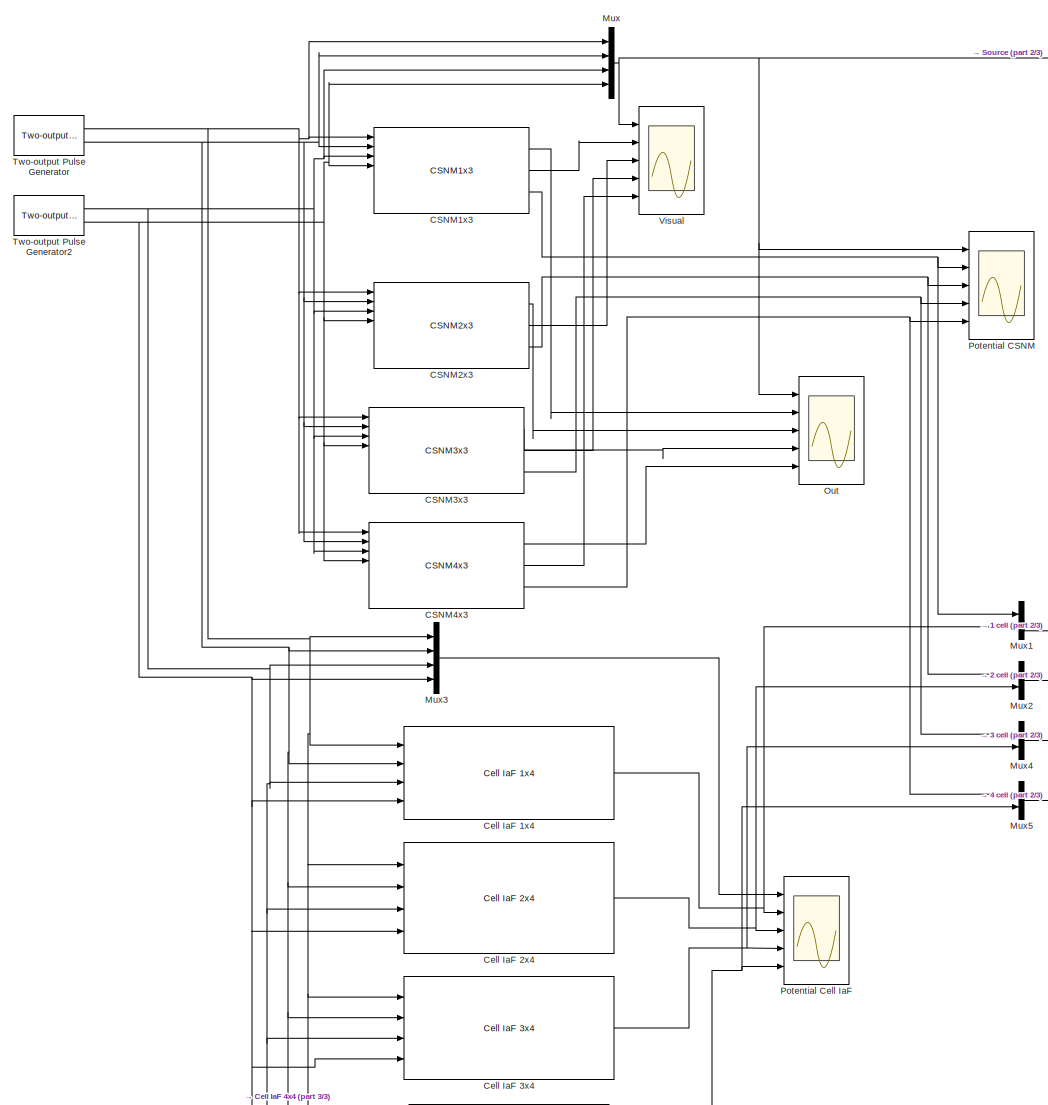
[diagram: root canvas - part 1/3, most of the canvas]
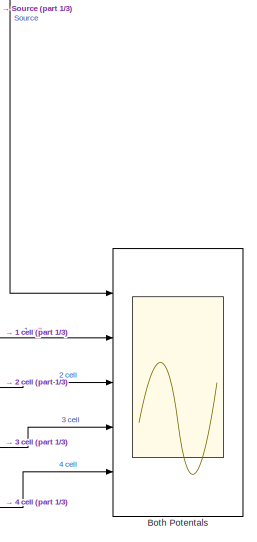
[diagram: root canvas - part 2/3, middle right region]
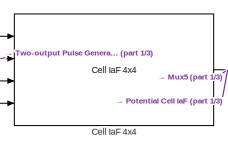
[diagram: root canvas - part 3/3, bottom center region]
MODEL slx_8ba29e321d9b
KIND model
CONFIG AbsTol = auto
CONFIG EnableMultiTasking = off
CONFIG FixedStep = auto
CONFIG MaxStep = auto
CONFIG MinStep = auto
CONFIG RelTol = 1e-3
CONFIG SampleTimeConstraint = Unconstrained
CONFIG SolverName = VariableStepAuto
CONFIG StartTime = 0.0
CONFIG StopTime = 2.0
BLOCK [Scope] Both Potentals
  Floating = off
  NumInputPorts = 5
  Ports = [5]
  ScopeSpecificationString = Simulink.scopes.TimeScopeBlockCfg('CurrentConfiguration', extmgr.ConfigurationSet(extmgr.Configuration('Core','General UI',true,'FigureColor',[1 1 1]),extmgr.Configuration('Core','Source UI',true),extmgr.Configuration('Sources','WiredSimulink',true,'DataLoggingSaveFormat','StructureWithTime','DataLoggingMaxPoints','5000000','DataLoggingLimitDataPoints',true,'DataLoggingDecimation','1','DataLogging...<+5822ch>
BLOCK [Reference] CSNM1x3  REF=NeuroModelerLibrary/Sized Cells/CSNM1x3
  NameLocation = top
  Ports = [8, 3]
  SourceBlock = NeuroModelerLibrary/Sized Cells/CSNM1x3
  SourceType = SubSystem
BLOCK [Reference] CSNM2x3  REF=NeuroModelerLibrary/Sized Cells/CSNM2x3
  NameLocation = top
  Ports = [8, 3]
  SourceBlock = NeuroModelerLibrary/Sized Cells/CSNM2x3
  SourceType = SubSystem
BLOCK [Reference] CSNM3x3  REF=NeuroModelerLibrary/Sized Cells/CSNM3x3
  NameLocation = top
  Ports = [8, 3]
  SourceBlock = NeuroModelerLibrary/Sized Cells/CSNM3x3
  SourceType = SubSystem
BLOCK [Reference] CSNM4x3  REF=NeuroModelerLibrary/Sized Cells/CSNM4x3
  NameLocation = top
  Ports = [8, 3]
  SourceBlock = NeuroModelerLibrary/Sized Cells/CSNM4x3
  SourceType = SubSystem
BLOCK [Reference] Cell IaF 1x4  REF=NeuroModelerLibrary/Sized Cells/Cell IaF 1x4
  Ports = [4, 1]
  SourceBlock = NeuroModelerLibrary/Sized Cells/Cell IaF 1x4
BLOCK [Reference] Cell IaF 2x4  REF=NeuroModelerLibrary/Sized Cells/Cell IaF 2x4
  Ports = [4, 1]
  SourceBlock = NeuroModelerLibrary/Sized Cells/Cell IaF 2x4
BLOCK [Reference] Cell IaF 3x4  REF=NeuroModelerLibrary/Sized Cells/Cell IaF 3x4
  Ports = [4, 1]
  SourceBlock = NeuroModelerLibrary/Sized Cells/Cell IaF 3x4
BLOCK [Reference] Cell IaF 4x4  REF=NeuroModelerLibrary/Sized Cells/Cell IaF 4x4
  Ports = [4, 1]
  SourceBlock = NeuroModelerLibrary/Sized Cells/Cell IaF 4x4
BLOCK [Mux] Mux
  DisplayOption = bar
  Ports = [4, 1]
BLOCK [Mux] Mux1
  DisplayOption = bar
  Inputs = 2
  Ports = [2, 1]
BLOCK [Mux] Mux2
  DisplayOption = bar
  Inputs = 2
  Ports = [2, 1]
BLOCK [Mux] Mux3
  DisplayOption = bar
  Ports = [4, 1]
BLOCK [Mux] Mux4
  DisplayOption = bar
  Inputs = 2
  Ports = [2, 1]
BLOCK [Mux] Mux5
  DisplayOption = bar
  Inputs = 2
  Ports = [2, 1]
BLOCK [Scope] Out
  Floating = off
  NumInputPorts = 5
  Ports = [5]
  ScopeSpecificationString = Simulink.scopes.TimeScopeBlockCfg('CurrentConfiguration', extmgr.ConfigurationSet(extmgr.Configuration('Core','General UI',true,'FigureColor',[1 1 1]),extmgr.Configuration('Core','Source UI',true),extmgr.Configuration('Sources','WiredSimulink',true,'DataLoggingSaveFormat','StructureWithTime','DataLoggingMaxPoints','5000000','DataLoggingLimitDataPoints',true,'DataLoggingDecimation','1','DataLogging...<+5240ch>
BLOCK [Scope] Potential CSNM
  Floating = off
  NumInputPorts = 5
  Ports = [5]
  ScopeSpecificationString = Simulink.scopes.TimeScopeBlockCfg('CurrentConfiguration', extmgr.ConfigurationSet(extmgr.Configuration('Core','General UI',true,'FigureColor',[1 1 1]),extmgr.Configuration('Core','Source UI',true),extmgr.Configuration('Sources','WiredSimulink',true,'DataLoggingSaveFormat','StructureWithTime','DataLoggingMaxPoints','5000000','DataLoggingLimitDataPoints',true,'DataLoggingDecimation','1','DataLogging...<+5250ch>
BLOCK [Scope] Potential Cell IaF
  Floating = off
  NumInputPorts = 5
  Ports = [5]
  ScopeSpecificationString = Simulink.scopes.TimeScopeBlockCfg('CurrentConfiguration', extmgr.ConfigurationSet(extmgr.Configuration('Core','General UI',true,'FigureColor',[1 1 1]),extmgr.Configuration('Core','Source UI',true),extmgr.Configuration('Sources','WiredSimulink',true,'DataLoggingSaveFormat','StructureWithTime','DataLoggingMaxPoints','5000000','DataLoggingLimitDataPoints',true,'DataLoggingDecimation','1','DataLogging...<+5267ch>
BLOCK [Reference] Two-output Pulse Generator  REF=NeuroModelerLibrary/Support/Two-output
Pulse Generator
  Ports = [0, 2]
  SourceBlock = NeuroModelerLibrary/Support/Two-output\nPulse Generator
BLOCK [Reference] Two-output Pulse Generator2  REF=NeuroModelerLibrary/Support/Two-output
Pulse Generator
  Ports = [0, 2]
  SourceBlock = NeuroModelerLibrary/Support/Two-output\nPulse Generator
BLOCK [Scope] Visual
  Floating = off
  NumInputPorts = 5
  Ports = [5]
  ScopeSpecificationString = Simulink.scopes.TimeScopeBlockCfg('CurrentConfiguration', extmgr.ConfigurationSet(extmgr.Configuration('Core','General UI',true,'FigureColor',[1 1 1]),extmgr.Configuration('Core','Source UI',true),extmgr.Configuration('Sources','WiredSimulink',true,'DataLoggingSaveFormat','StructureWithTime','DataLoggingMaxPoints','5000000','DataLoggingLimitDataPoints',true,'DataLoggingDecimation','1','DataLogging...<+5193ch>
LINE CSNM1x3:1 -> Out:2
LINE CSNM1x3:2 -> Visual:2
NET CSNM1x3:3 -> Mux1:1, Potential CSNM:2
LINE CSNM2x3:1 -> Out:3
LINE CSNM2x3:2 -> Visual:3
NET CSNM2x3:3 -> Mux2:1, Potential CSNM:3
LINE CSNM3x3:1 -> Out:4
LINE CSNM3x3:2 -> Visual:4
NET CSNM3x3:3 -> Mux4:1, Potential CSNM:4
LINE CSNM4x3:1 -> Out:5
LINE CSNM4x3:2 -> Visual:5
NET CSNM4x3:3 -> Mux5:1, Potential CSNM:5
NET Cell IaF 1x4:1 -> Mux1:2, Potential Cell IaF:2
NET Cell IaF 2x4:1 -> Mux2:2, Potential Cell IaF:3
NET Cell IaF 3x4:1 -> Mux4:2, Potential Cell IaF:4
NET Cell IaF 4x4:1 -> Mux5:2, Potential Cell IaF:5
LINE Mux1:1 -> Both Potentals:2
LINE Mux2:1 -> Both Potentals:3
LINE Mux3:1 -> Potential Cell IaF:1
LINE Mux4:1 -> Both Potentals:4
LINE Mux5:1 -> Both Potentals:5
NET Mux:1 -> Both Potentals:1, Out:1, Potential CSNM:1, Visual:1
NET Two-output Pulse Generator2:1 -> CSNM1x3:3, CSNM2x3:3, CSNM3x3:3, CSNM4x3:3, Cell IaF 1x4:3, Cell IaF 2x4:3, Cell IaF 3x4:3, Cell IaF 4x4:3, Mux3:3, Mux:3
NET Two-output Pulse Generator2:2 -> CSNM1x3:4, CSNM2x3:4, CSNM3x3:4, CSNM4x3:4, Cell IaF 1x4:4, Cell IaF 2x4:4, Cell IaF 3x4:4, Cell IaF 4x4:4, Mux3:4, Mux:4
NET Two-output Pulse Generator:1 -> CSNM1x3:1, CSNM2x3:1, CSNM3x3:1, CSNM4x3:1, Cell IaF 1x4:1, Cell IaF 2x4:1, Cell IaF 3x4:1, Cell IaF 4x4:1, Mux3:1, Mux:1
NET Two-output Pulse Generator:2 -> CSNM1x3:2, CSNM2x3:2, CSNM3x3:2, CSNM4x3:2, Cell IaF 1x4:2, Cell IaF 2x4:2, Cell IaF 3x4:2, Cell IaF 4x4:2, Mux3:2, Mux:2
note: NET lines group one-source signal fan-out (src -> all destinations, sorted); 1:1 wires keep LINE
